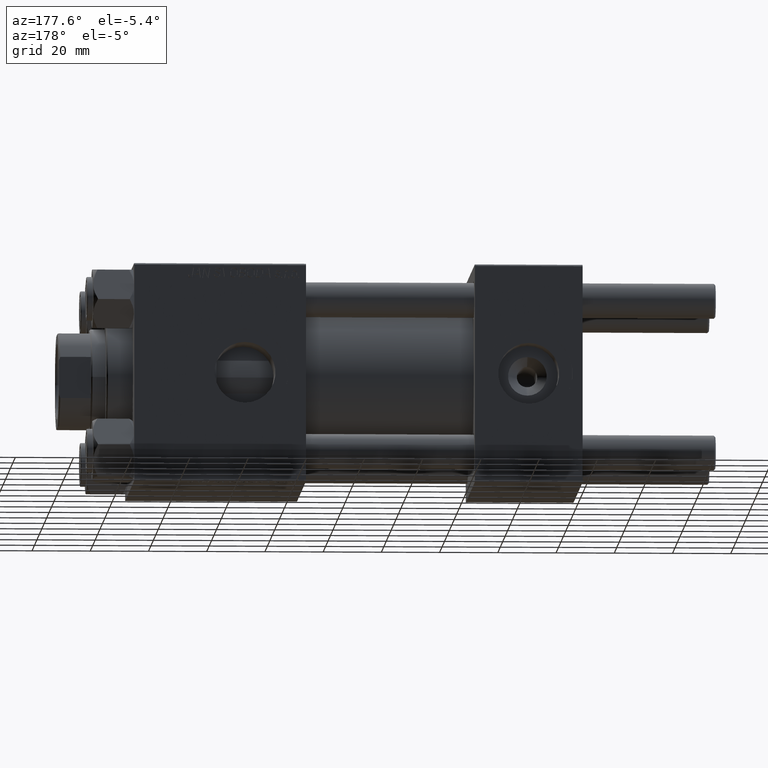
[diagram: clean part render]
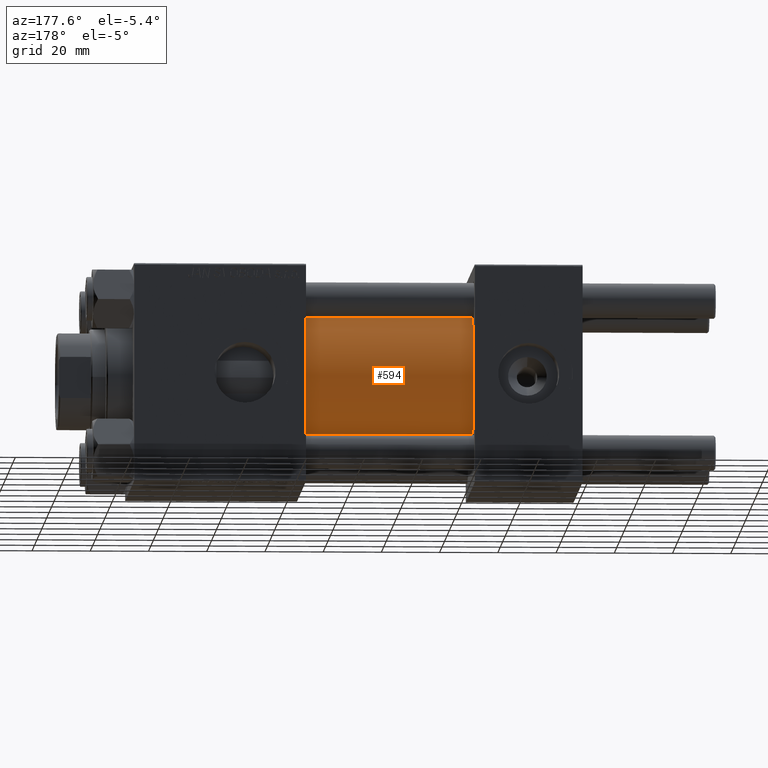
[diagram: same view with one face highlighted and labeled with its STEP entity id]
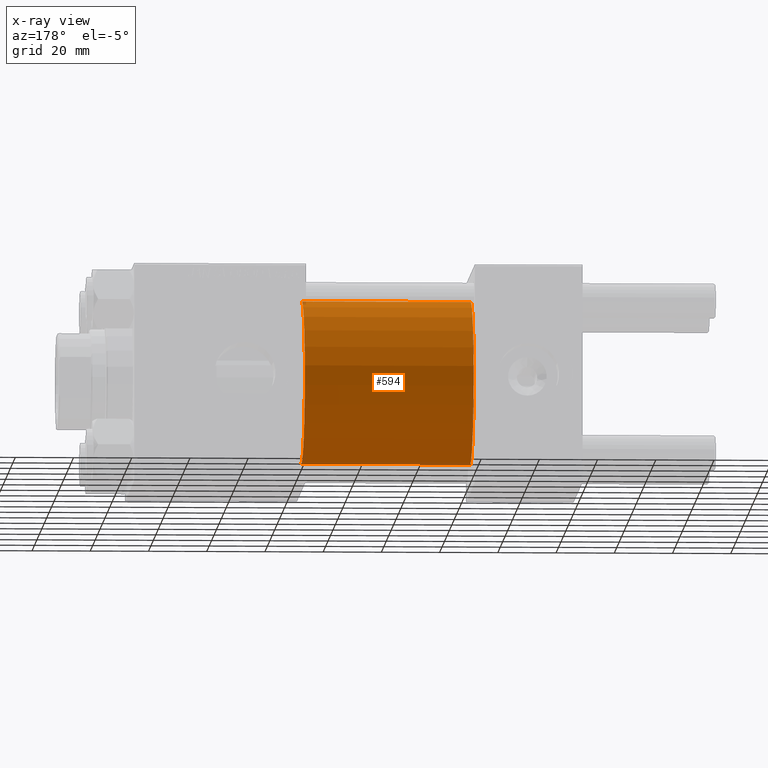
[diagram: x-ray of the same camera — body ghosted, the highlighted face saturated]
A machine part, auxiliary view. The second image highlights one B-rep face of the part: STEP entity #594.
The next image is the same camera in x-ray: the body ghosted, the highlighted face saturated — about 2% of this face is hidden behind the body in this view.
In plain terms, the highlighted cylindrical surface (partial cylindrical patch) has radius 28 mm, axis along (-1, -0, -0).
Its self-contained STEP definition (entity closure, byte-faithful):
#425 = CARTESIAN_POINT ( 'NONE',  ( 95.00000000000000000, 0.000000000000000000, 28.00000000000000000 ) ) ;
#594 = ADVANCED_FACE ( 'NONE', ( #7468 ), #31279, .T. ) ;
#633 = ORIENTED_EDGE ( 'NONE', *, *, #48746, .F. ) ;
#1861 = DIRECTION ( 'NONE',  ( -1.000000000000000000, -0.000000000000000000, -0.000000000000000000 ) ) ;
#2316 = CARTESIAN_POINT ( 'NONE',  ( 37.00000000000000000, 3.429011037612588487E-15, -28.00000000000000000 ) ) ;
#3296 = CIRCLE ( 'NONE', #38437, 28.00000000000000000 ) ;
#5192 = AXIS2_PLACEMENT_3D ( 'NONE', #43336, #23430, #35475 ) ;
#5219 = EDGE_CURVE ( 'NONE', #48744, #36118, #33314, .T. ) ;
#5629 = DIRECTION ( 'NONE',  ( 1.000000000000000000, 0.000000000000000000, 0.000000000000000000 ) ) ;
#6414 = DIRECTION ( 'NONE',  ( 0.000000000000000000, 0.000000000000000000, -1.000000000000000000 ) ) ;
#7468 = FACE_OUTER_BOUND ( 'NONE', #51764, .T. ) ;
#8685 = ORIENTED_EDGE ( 'NONE', *, *, #46966, .F. ) ;
#9684 = ORIENTED_EDGE ( 'NONE', *, *, #5219, .T. ) ;
#10412 = DIRECTION ( 'NONE',  ( -1.000000000000000000, -0.000000000000000000, -0.000000000000000000 ) ) ;
#11113 = DIRECTION ( 'NONE',  ( 1.000000000000000000, -0.000000000000000000, 0.000000000000000000 ) ) ;
#12504 = AXIS2_PLACEMENT_3D ( 'NONE', #42282, #5629, #6414 ) ;
#12903 = CARTESIAN_POINT ( 'NONE',  ( 95.00000000000000000, 3.429011037612588487E-15, -28.00000000000000000 ) ) ;
#17455 = VECTOR ( 'NONE', #10412, 1000.000000000000000 ) ;
#20227 = VECTOR ( 'NONE', #1861, 1000.000000000000000 ) ;
#22710 = CARTESIAN_POINT ( 'NONE',  ( 95.00000000000000000, 0.000000000000000000, 28.00000000000000000 ) ) ;
#22979 = CARTESIAN_POINT ( 'NONE',  ( 95.00000000000000000, 3.429011037612588487E-15, -28.00000000000000000 ) ) ;
#23430 = DIRECTION ( 'NONE',  ( -1.000000000000000000, -0.000000000000000000, -0.000000000000000000 ) ) ;
#29852 = ORIENTED_EDGE ( 'NONE', *, *, #51013, .T. ) ;
#31265 = DIRECTION ( 'NONE',  ( 0.000000000000000000, 0.000000000000000000, 1.000000000000000000 ) ) ;
#31279 = CYLINDRICAL_SURFACE ( 'NONE', #5192, 28.00000000000000000 ) ;
#33314 = LINE ( 'NONE', #12903, #20227 ) ;
#35073 = CIRCLE ( 'NONE', #12504, 28.00000000000000000 ) ;
#35475 = DIRECTION ( 'NONE',  ( 0.000000000000000000, 0.000000000000000000, 1.000000000000000000 ) ) ;
#36118 = VERTEX_POINT ( 'NONE', #2316 ) ;
#38437 = AXIS2_PLACEMENT_3D ( 'NONE', #42803, #11113, #31265 ) ;
#39906 = VERTEX_POINT ( 'NONE', #49482 ) ;
#42282 = CARTESIAN_POINT ( 'NONE',  ( 95.00000000000000000, 0.000000000000000000, 0.000000000000000000 ) ) ;
#42803 = CARTESIAN_POINT ( 'NONE',  ( 37.00000000000000000, 0.000000000000000000, 0.000000000000000000 ) ) ;
#43336 = CARTESIAN_POINT ( 'NONE',  ( 95.00000000000000000, 0.000000000000000000, 0.000000000000000000 ) ) ;
#43988 = VERTEX_POINT ( 'NONE', #425 ) ;
#46966 = EDGE_CURVE ( 'NONE', #48744, #43988, #35073, .T. ) ;
#48744 = VERTEX_POINT ( 'NONE', #22979 ) ;
#48746 = EDGE_CURVE ( 'NONE', #43988, #39906, #50226, .T. ) ;
#49482 = CARTESIAN_POINT ( 'NONE',  ( 37.00000000000000000, 0.000000000000000000, 28.00000000000000000 ) ) ;
#50226 = LINE ( 'NONE', #22710, #17455 ) ;
#51013 = EDGE_CURVE ( 'NONE', #36118, #39906, #3296, .T. ) ;
#51764 = EDGE_LOOP ( 'NONE', ( #8685, #9684, #29852, #633 ) ) ;